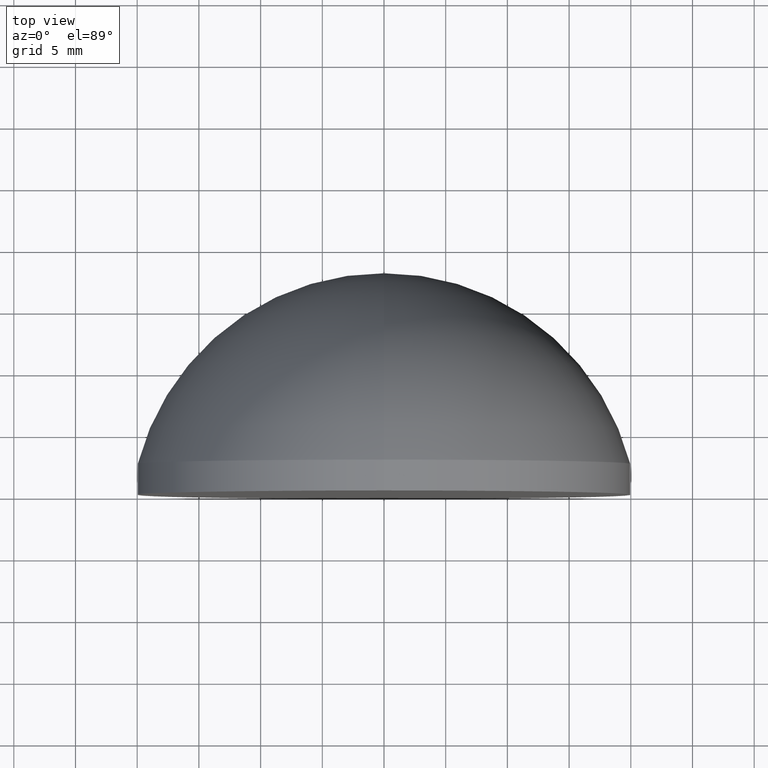
[diagram: clean part render]
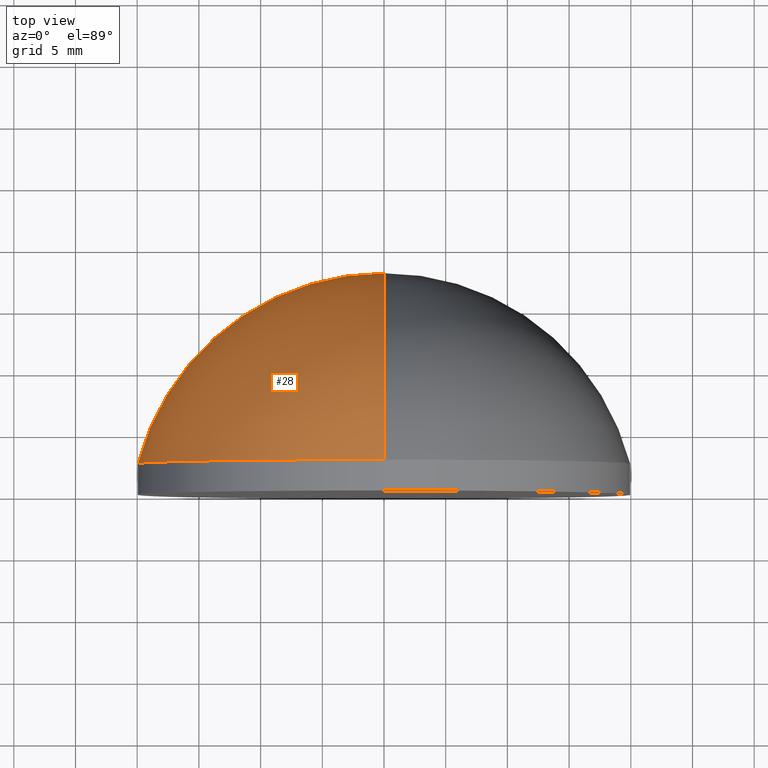
[diagram: same view with one face highlighted and labeled with its STEP entity id]
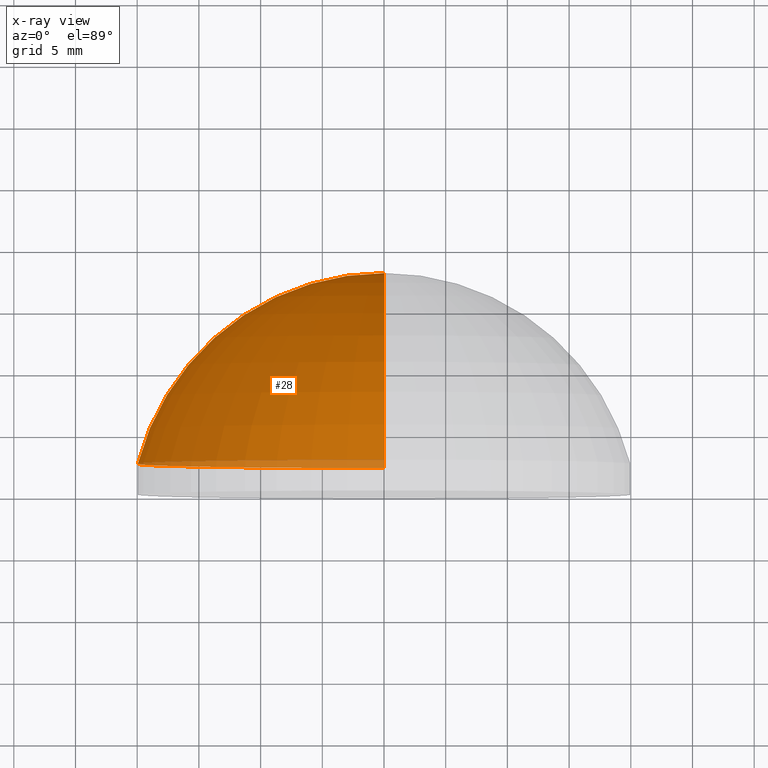
[diagram: x-ray of the same camera — body ghosted, the highlighted face saturated]
A machine part, top view. The second image highlights one B-rep face of the part: STEP entity #28.
The next image is the same camera in x-ray: the body ghosted, the highlighted face saturated — about 5% of this face is hidden behind the body in this view.
In plain terms, the highlighted toroidal blend (fillet) surface has major radius 0 mm and minor (blend) radius 20.67 mm.
Its self-contained STEP definition (entity closure, byte-faithful):
#6 = DIRECTION ( 'NONE',  ( -1.000000000000000000, 0.000000000000000000, 0.000000000000000000 ) ) ;
#7 = EDGE_CURVE ( 'NONE', #145, #161, #54, .T. ) ;
#11 = CIRCLE ( 'NONE', #15, 20.67000000000000881 ) ;
#14 = CARTESIAN_POINT ( 'NONE',  ( 2.449293598294706513E-15, 2.499999999999996891, -20.00000000000000000 ) ) ;
#15 = AXIS2_PLACEMENT_3D ( 'NONE', #112, #182, #136 ) ;
#16 = CARTESIAN_POINT ( 'NONE',  ( 0.000000000000000000, 2.499999999999996891, 20.00000000000000000 ) ) ;
#21 = AXIS2_PLACEMENT_3D ( 'NONE', #164, #67, #146 ) ;
#28 = ADVANCED_FACE ( 'NONE', ( #134 ), #110, .T. ) ;
#37 = ORIENTED_EDGE ( 'NONE', *, *, #46, .T. ) ;
#42 = CARTESIAN_POINT ( 'NONE',  ( 0.000000000000000000, 17.94999999999999929, 0.000000000000000000 ) ) ;
#45 = CIRCLE ( 'NONE', #156, 20.00000000000000000 ) ;
#46 = EDGE_CURVE ( 'NONE', #175, #145, #45, .T. ) ;
#51 = CARTESIAN_POINT ( 'NONE',  ( 0.000000000000000000, 2.499999999999996891, 0.000000000000000000 ) ) ;
#54 = CIRCLE ( 'NONE', #81, 20.67000000000000881 ) ;
#64 = DIRECTION ( 'NONE',  ( 0.000000000000000000, 0.000000000000000000, 1.000000000000000000 ) ) ;
#67 = DIRECTION ( 'NONE',  ( -0.000000000000000000, 1.000000000000000000, -0.000000000000000000 ) ) ;
#69 = EDGE_LOOP ( 'NONE', ( #130, #37, #179 ) ) ;
#81 = AXIS2_PLACEMENT_3D ( 'NONE', #148, #6, #120 ) ;
#110 = TOROIDAL_SURFACE ( 'NONE', #21, -1.249999708602400617E-05, 20.67000000000000881 ) ;
#112 = CARTESIAN_POINT ( 'NONE',  ( -1.530808142075054168E-21, -2.719999999996225437, 1.249999708602400617E-05 ) ) ;
#120 = DIRECTION ( 'NONE',  ( 0.000000000000000000, 0.000000000000000000, 1.000000000000000000 ) ) ;
#130 = ORIENTED_EDGE ( 'NONE', *, *, #172, .F. ) ;
#134 = FACE_OUTER_BOUND ( 'NONE', #69, .T. ) ;
#136 = DIRECTION ( 'NONE',  ( 1.224646799147353207E-16, 0.000000000000000000, -1.000000000000000000 ) ) ;
#145 = VERTEX_POINT ( 'NONE', #16 ) ;
#146 = DIRECTION ( 'NONE',  ( 0.000000000000000000, 0.000000000000000000, 1.000000000000000000 ) ) ;
#148 = CARTESIAN_POINT ( 'NONE',  ( 0.000000000000000000, -2.719999999996225437, -1.249999708602400617E-05 ) ) ;
#156 = AXIS2_PLACEMENT_3D ( 'NONE', #51, #162, #64 ) ;
#161 = VERTEX_POINT ( 'NONE', #42 ) ;
#162 = DIRECTION ( 'NONE',  ( -0.000000000000000000, 1.000000000000000000, -0.000000000000000000 ) ) ;
#164 = CARTESIAN_POINT ( 'NONE',  ( 0.000000000000000000, -2.719999999996225437, 0.000000000000000000 ) ) ;
#172 = EDGE_CURVE ( 'NONE', #175, #161, #11, .T. ) ;
#175 = VERTEX_POINT ( 'NONE', #14 ) ;
#179 = ORIENTED_EDGE ( 'NONE', *, *, #7, .T. ) ;
#182 = DIRECTION ( 'NONE',  ( 1.000000000000000000, 0.000000000000000000, 1.224646799147353207E-16 ) ) ;